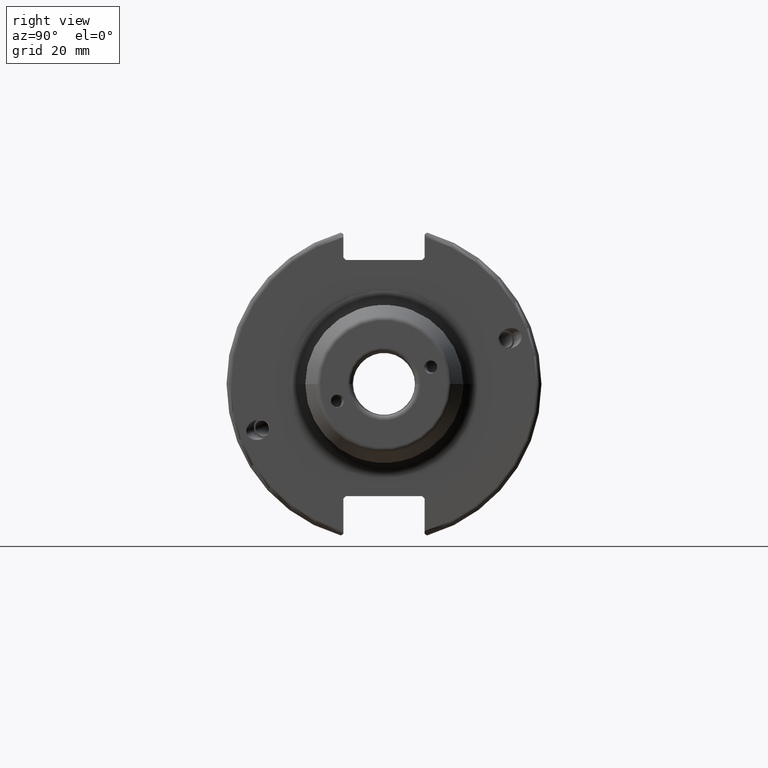
[diagram: clean part render]
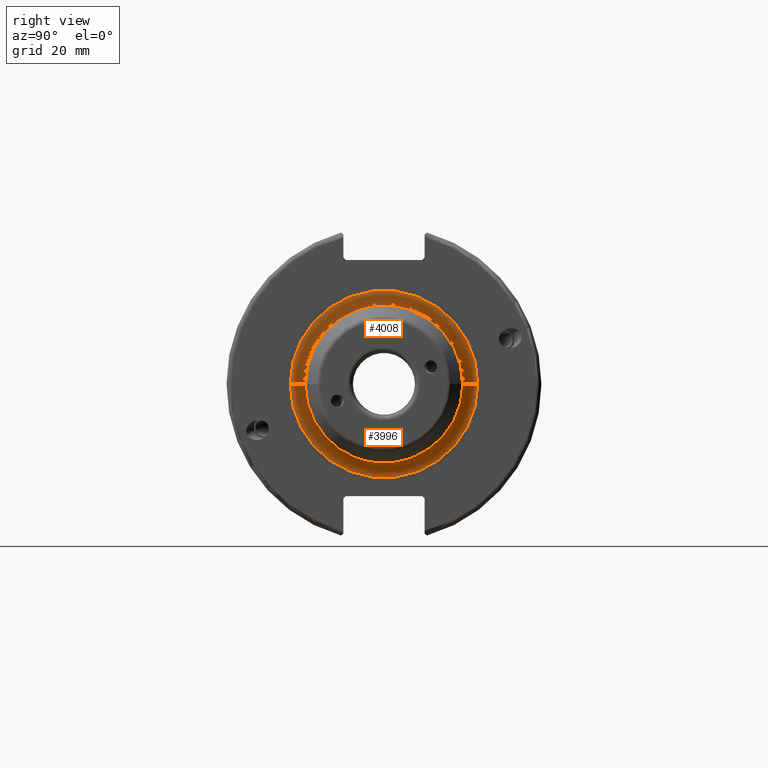
[diagram: same view with one multi-face feature highlighted, each face labeled with its STEP entity id]
A machine part, right view. The highlighted faces form ONE feature: a constant-radius fillet chain: 2 tangent blend faces with common blend radius 3 mm. The faces share edges in the B-rep.
Their STEP definitions:
[1] entity #4008 (Torus):
#357=CARTESIAN_POINT('',(1.905E1,0.E0,0.E0));
#358=DIRECTION('',(1.E0,0.E0,0.E0));
#359=DIRECTION('',(0.E0,1.E0,0.E0));
#360=AXIS2_PLACEMENT_3D('',#357,#358,#359);
#1748=CARTESIAN_POINT('',(2.205E1,-1.89E1,0.E0));
#1749=DIRECTION('',(0.E0,0.E0,1.E0));
#1750=DIRECTION('',(0.E0,1.E0,0.E0));
#1751=AXIS2_PLACEMENT_3D('',#1748,#1749,#1750);
#1758=CARTESIAN_POINT('',(2.205E1,1.89E1,0.E0));
#1759=DIRECTION('',(0.E0,0.E0,-1.E0));
#1760=DIRECTION('',(0.E0,-1.E0,0.E0));
#1761=AXIS2_PLACEMENT_3D('',#1758,#1759,#1760);
#1763=CARTESIAN_POINT('',(2.205E1,0.E0,0.E0));
#1764=DIRECTION('',(1.E0,0.E0,0.E0));
#1765=DIRECTION('',(0.E0,1.E0,0.E0));
#1766=AXIS2_PLACEMENT_3D('',#1763,#1764,#1765);
#2293=CARTESIAN_POINT('',(2.205E1,1.59E1,0.E0));
#2294=VERTEX_POINT('',#2293);
#2303=CARTESIAN_POINT('',(2.205E1,-1.59E1,0.E0));
#2304=VERTEX_POINT('',#2303);
#2305=CARTESIAN_POINT('',(1.905E1,1.89E1,0.E0));
#2306=CARTESIAN_POINT('',(1.905E1,-1.89E1,0.E0));
#2307=VERTEX_POINT('',#2305);
#2308=VERTEX_POINT('',#2306);
#3997=CARTESIAN_POINT('',(2.205E1,0.E0,0.E0));
#3998=DIRECTION('',(1.E0,0.E0,0.E0));
#3999=DIRECTION('',(0.E0,-1.E0,0.E0));
#4000=AXIS2_PLACEMENT_3D('',#3997,#3998,#3999);
#4001=TOROIDAL_SURFACE('',#4000,1.89E1,3.E0);
#4002=ORIENTED_EDGE('',*,*,#2640,.F.);
#4003=ORIENTED_EDGE('',*,*,#3992,.F.);
#4004=ORIENTED_EDGE('',*,*,#3953,.T.);
#4005=ORIENTED_EDGE('',*,*,#3989,.T.);
#4006=EDGE_LOOP('',(#4002,#4003,#4004,#4005));
#4007=FACE_OUTER_BOUND('',#4006,.F.);
#4008=ADVANCED_FACE('',(#4007),#4001,.F.);
#361=CIRCLE('',#360,1.89E1);
#1752=CIRCLE('',#1751,3.E0);
#1762=CIRCLE('',#1761,3.E0);
#1767=CIRCLE('',#1766,1.59E1);
#2640=EDGE_CURVE('',#2307,#2308,#361,.T.);
#3953=EDGE_CURVE('',#2294,#2304,#1767,.T.);
#3989=EDGE_CURVE('',#2304,#2308,#1752,.T.);
#3992=EDGE_CURVE('',#2294,#2307,#1762,.T.);
[2] entity #3996 (Torus):
#362=CARTESIAN_POINT('',(1.905E1,0.E0,0.E0));
#363=DIRECTION('',(1.E0,0.E0,0.E0));
#364=DIRECTION('',(0.E0,-1.E0,0.E0));
#365=AXIS2_PLACEMENT_3D('',#362,#363,#364);
#1748=CARTESIAN_POINT('',(2.205E1,-1.89E1,0.E0));
#1749=DIRECTION('',(0.E0,0.E0,1.E0));
#1750=DIRECTION('',(0.E0,1.E0,0.E0));
#1751=AXIS2_PLACEMENT_3D('',#1748,#1749,#1750);
#1753=CARTESIAN_POINT('',(2.205E1,0.E0,0.E0));
#1754=DIRECTION('',(-1.E0,0.E0,0.E0));
#1755=DIRECTION('',(0.E0,1.E0,0.E0));
#1756=AXIS2_PLACEMENT_3D('',#1753,#1754,#1755);
#1758=CARTESIAN_POINT('',(2.205E1,1.89E1,0.E0));
#1759=DIRECTION('',(0.E0,0.E0,-1.E0));
#1760=DIRECTION('',(0.E0,-1.E0,0.E0));
#1761=AXIS2_PLACEMENT_3D('',#1758,#1759,#1760);
#2293=CARTESIAN_POINT('',(2.205E1,1.59E1,0.E0));
#2294=VERTEX_POINT('',#2293);
#2303=CARTESIAN_POINT('',(2.205E1,-1.59E1,0.E0));
#2304=VERTEX_POINT('',#2303);
#2305=CARTESIAN_POINT('',(1.905E1,1.89E1,0.E0));
#2306=CARTESIAN_POINT('',(1.905E1,-1.89E1,0.E0));
#2307=VERTEX_POINT('',#2305);
#2308=VERTEX_POINT('',#2306);
#3983=CARTESIAN_POINT('',(2.205E1,0.E0,0.E0));
#3984=DIRECTION('',(1.E0,0.E0,0.E0));
#3985=DIRECTION('',(0.E0,-1.E0,0.E0));
#3986=AXIS2_PLACEMENT_3D('',#3983,#3984,#3985);
#3987=TOROIDAL_SURFACE('',#3986,1.89E1,3.E0);
#3988=ORIENTED_EDGE('',*,*,#2642,.F.);
#3990=ORIENTED_EDGE('',*,*,#3989,.F.);
#3991=ORIENTED_EDGE('',*,*,#3970,.F.);
#3993=ORIENTED_EDGE('',*,*,#3992,.T.);
#3994=EDGE_LOOP('',(#3988,#3990,#3991,#3993));
#3995=FACE_OUTER_BOUND('',#3994,.F.);
#3996=ADVANCED_FACE('',(#3995),#3987,.F.);
#366=CIRCLE('',#365,1.89E1);
#1752=CIRCLE('',#1751,3.E0);
#1757=CIRCLE('',#1756,1.59E1);
#1762=CIRCLE('',#1761,3.E0);
#2642=EDGE_CURVE('',#2308,#2307,#366,.T.);
#3970=EDGE_CURVE('',#2294,#2304,#1757,.T.);
#3989=EDGE_CURVE('',#2304,#2308,#1752,.T.);
#3992=EDGE_CURVE('',#2294,#2307,#1762,.T.);